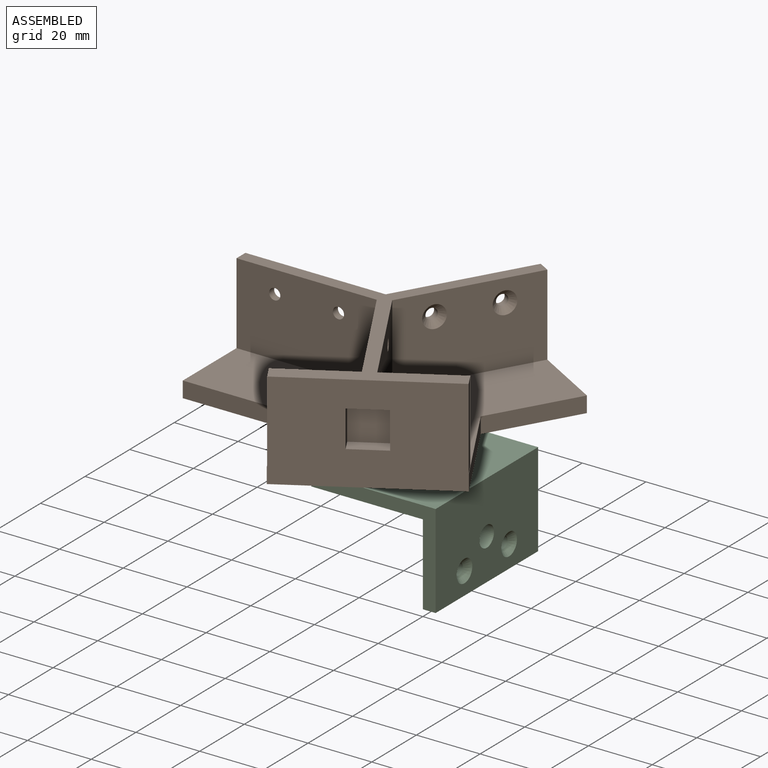
[diagram: assembled view]
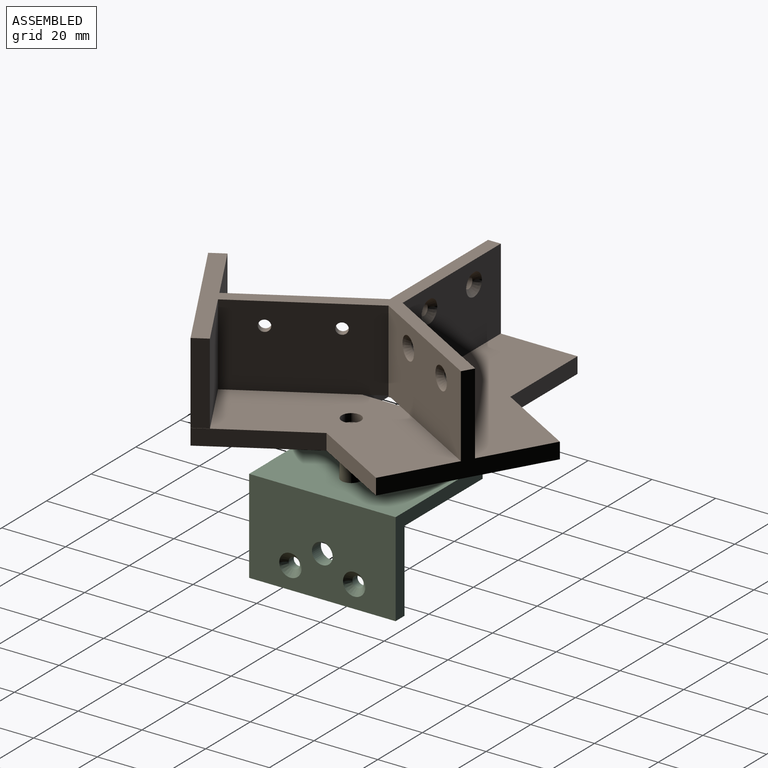
[diagram: assembled view, second angle]
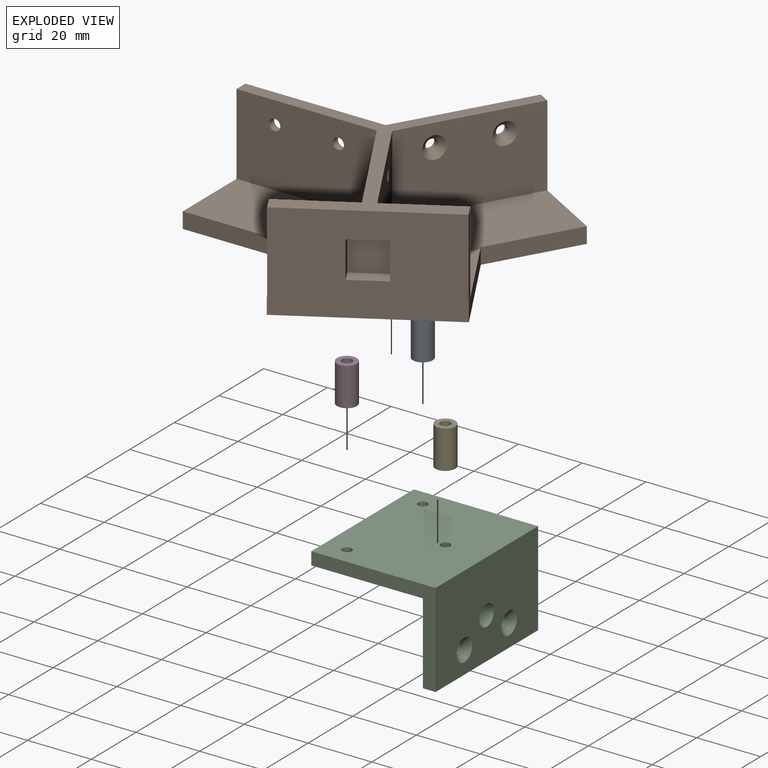
[diagram: exploded view]
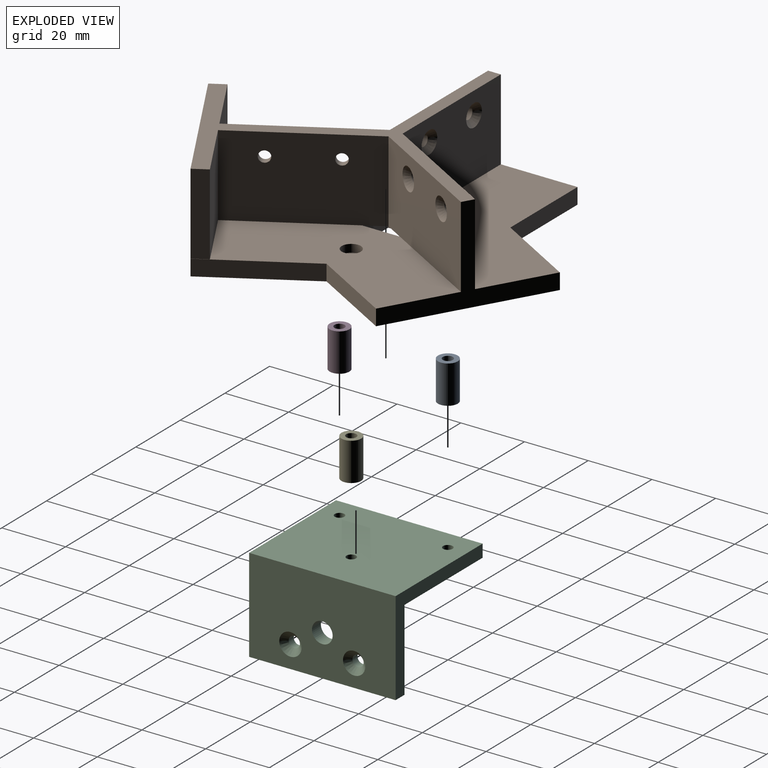
[diagram: exploded view, second angle]
ASSEMBLY  parts=5 mates=4
PART A: 4 faces, bbox 6.2x6.2x12 mm
  f0: cylinder r=1.6mm len=12mm, axis (0,0,-1), area 120.6mm2, adj f2,f3
  f1: cylinder r=3.1mm len=12mm, axis (0,0,-1), area 233.7mm2, adj f2,f3
  f2: plane 6.2x6.2mm, normal (0,0,1), area 22.1mm2, adj f0,f1
  f3: plane 6.2x6.2mm, normal (0,0,-1), area 22.1mm2, adj f0,f1
PART B: 55 faces, bbox 92.8x108.6x30.5 mm
  f0: plane 45.15x30.5mm, normal (0.5,-0.87,0), area 1454.5mm2, adj f1,f2,f3,f4,f27,f28,f47,f49
  f1: plane 66x54.47mm, normal (0,0,1), area 1734.5mm2, adj f0,f9,f10,f12,f26,f27,f40,f44
  f2: plane 108.61x92.81mm, normal (0,0,-1), area 5993.2mm2, adj f0,f7,f12,f26,f27,f28,f29,f30
  f3: plane 76.21x42.03mm, normal (0,0,1), area 1735.3mm2, adj f0,f6,f7,f8,f28,f29,f37,f42
  f4: plane 96.54x92.75mm, normal (0,0,1), area 794.9mm2, adj f0,f5,f6,f7,f8,f9,f10,f11
  f5: plane 38.11x25.5mm, normal (-0.87,0.5,0), area 1102.8mm2, adj f4,f7,f11,f17,f19,f25,f41
  f6: plane 38.11x25.5mm, normal (0.87,-0.5,0), area 1045mm2, adj f3,f4,f7,f8,f18,f20,f41
  f7: plane 45.15x30.5mm, normal (0.5,0.87,0), area 362.7mm2, adj f2,f3,f4,f5,f6,f25,f29,f31
  f8: plane 38.11x25.5mm, normal (0.87,0.5,0), area 1102.8mm2, adj f3,f4,f6,f13,f15,f41,f48
  f9: plane 38.11x25.5mm, normal (-0.87,-0.5,0), area 1045mm2, adj f1,f4,f10,f14,f16,f41,f46
  f10: plane 44x25.5mm, normal (0,-1,0), area 1102.8mm2, adj f1,f4,f9,f12,f21,f23,f41
  f11: plane 44x25.5mm, normal (0,1,0), area 1045mm2, adj f4,f5,f12,f22,f24,f25,f41
  f12: plane 52.14x30.5mm, normal (-1,0,0), area 362.7mm2, adj f1,f2,f4,f10,f11,f25,f26,f30
  f13: cylinder r=1.75mm len=4.16mm, axis (-0.87,-0.5,0), area 24.7mm2, adj f8,f14
  f14: cone r=1.75mm half-angle=45deg, axis (-0.87,-0.5,0), area 40.8mm2, adj f9,f13
  f15: cylinder r=1.75mm len=4.16mm, axis (-0.87,-0.5,0), area 24.7mm2, adj f8,f16
  f16: cone r=1.75mm half-angle=45deg, axis (-0.87,-0.5,0), area 40.8mm2, adj f9,f15
  f17: cylinder r=1.75mm len=4.16mm, axis (0.87,-0.5,0), area 24.7mm2, adj f5,f18
  f18: cone r=1.75mm half-angle=45deg, axis (0.87,-0.5,0), area 40.8mm2, adj f6,f17
  f19: cylinder r=1.75mm len=4.16mm, axis (0.87,-0.5,0), area 24.7mm2, adj f5,f20
  f20: cone r=1.75mm half-angle=45deg, axis (0.87,-0.5,0), area 40.8mm2, adj f6,f19
  f21: cylinder r=1.75mm len=3.5mm, axis (0,1,0), area 24.7mm2, adj f10,f22
  f22: cone r=1.75mm half-angle=45deg, axis (0,1,0), area 40.8mm2, adj f11,f21
  f23: cylinder r=1.75mm len=3.5mm, axis (0,1,0), area 24.7mm2, adj f10,f24
  f24: cone r=1.75mm half-angle=45deg, axis (0,1,0), area 40.8mm2, adj f11,f23
  f25: plane 66x50.14mm, normal (0,0,1), area 1734.1mm2, adj f5,f7,f11,f12,f30,f31,f34,f42
  f26: plane 30.1x5mm, normal (0,-1,0), area 150.5mm2, adj f1,f2,f12,f27
  f27: plane 30.4x17.55mm, normal (-0.87,-0.5,0), area 175.5mm2, adj f0,f1,f2,f26
  f28: plane 30.4x17.55mm, normal (0.87,0.5,0), area 175.5mm2, adj f0,f2,f3,f29
  f29: plane 26.07x15.05mm, normal (0.87,-0.5,0), area 150.5mm2, adj f2,f3,f7,f28
  f30: plane 30.1x5mm, normal (0,1,0), area 150.5mm2, adj f2,f12,f25,f31
  f31: plane 26.07x15.05mm, normal (-0.87,0.5,0), area 150.5mm2, adj f2,f7,f25,f30
  f32: cylinder r=1.5mm len=3mm, axis (0,0,1), area 23.6mm2, adj f2,f33
  f33: plane 6x6mm, normal (0,0,1), area 21.2mm2, adj f32,f34
  f34: cylinder r=3mm len=6mm, axis (0,0,1), area 47.1mm2, adj f25,f33
  f35: cylinder r=1.5mm len=3mm, axis (0,0,1), area 23.6mm2, adj f2,f36
  f36: plane 6x6mm, normal (0,0,1), area 21.2mm2, adj f35,f37
  f37: cylinder r=3mm len=6mm, axis (0,0,1), area 47.1mm2, adj f3,f36
  f38: cylinder r=1.5mm len=3mm, axis (0,0,1), area 23.6mm2, adj f2,f39
  f39: plane 6x6mm, normal (0,0,1), area 21.2mm2, adj f38,f40
  f40: cylinder r=3mm len=6mm, axis (0,0,1), area 47.1mm2, adj f1,f39
  f41: plane 11.5x11.38mm, normal (0,0,-1), area 69.2mm2, adj f5,f6,f8,f9,f10,f11,f42,f44
  f42: plane 11.5x5mm, normal (0,-1,0), area 57.5mm2, adj f2,f3,f25,f41,f43,f45
  f43: plane 11.5x5mm, normal (-1,0,0), area 57.5mm2, adj f2,f3,f42,f44
  f44: plane 11.5x5mm, normal (0,1,0), area 57.5mm2, adj f1,f2,f3,f41,f43,f45
  f45: plane 11.5x5mm, normal (1,0,0), area 57.5mm2, adj f1,f2,f25,f41,f42,f44
  f46: plane 25.5x20.78mm, normal (-0.5,0.87,0), area 612mm2, adj f1,f4,f9,f47
  f47: plane 25.5x4.33mm, normal (-0.87,-0.5,0), area 127.5mm2, adj f0,f1,f4,f46
  f48: plane 25.5x20.78mm, normal (-0.5,0.87,0), area 612mm2, adj f3,f4,f8,f49
  f49: plane 25.5x4.33mm, normal (0.87,0.5,0), area 127.5mm2, adj f0,f3,f4,f48
  f50: plane 12.21x9.65mm, normal (0,0,1), area 51.8mm2, adj f0,f51,f53,f54
  f51: plane 11.5x3.9mm, normal (-0.87,-0.5,0), area 51.8mm2, adj f0,f50,f52,f54
  f52: plane 12.21x9.65mm, normal (0,0,-1), area 51.8mm2, adj f0,f51,f53,f54
  f53: plane 11.5x3.9mm, normal (0.87,0.5,0), area 51.8mm2, adj f0,f50,f52,f54
  f54: plane 11.5x9.96mm, normal (0.5,-0.87,0), area 132.2mm2, adj f50,f51,f52,f53
PART C: 24 faces, bbox 39x46x29.5 mm
  f0: cylinder r=3.25mm len=6.5mm, axis (-1,0,0), area 81.7mm2, adj f18,f19
  f1: plane 39x29.5mm, normal (0,1,0), area 258mm2, adj f3,f4,f7,f8,f18,f19
  f2: plane 29.5x9mm, normal (0,-1,0), area 138mm2, adj f3,f5,f7,f8,f18,f19
  f3: plane 45.95x4mm, normal (0,0,1), area 183.8mm2, adj f1,f2,f18,f19
  f4: plane 46x4mm, normal (1,0,0), area 184mm2, adj f1,f6,f7,f8
  f5: plane 4x0.05mm, normal (-1,0,0), area 0.2mm2, adj f2,f6,f7,f8
  f6: plane 30x4mm, normal (0,-1,0), area 120mm2, adj f4,f5,f7,f8
  f7: plane 46x39mm, normal (0,0,-1), area 1772.3mm2, adj f1,f2,f4,f5,f6,f9,f12,f15
  f8: plane 46x35mm, normal (0,0,1), area 1524.9mm2, adj f1,f2,f4,f5,f6,f11,f14,f17
  f9: cylinder r=1.5mm len=3mm, axis (0,0,1), area 14.1mm2, adj f7,f10
  f10: plane 6x6mm, normal (0,0,1), area 21.2mm2, adj f9,f11
  f11: cylinder r=3mm len=6mm, axis (0,0,1), area 47.1mm2, adj f8,f10
  f12: cylinder r=1.5mm len=3mm, axis (0,0,1), area 14.1mm2, adj f7,f13
  f13: plane 6x6mm, normal (0,0,1), area 21.2mm2, adj f12,f14
  f14: cylinder r=3mm len=6mm, axis (0,0,1), area 47.1mm2, adj f8,f13
  f15: cylinder r=1.5mm len=3mm, axis (0,0,1), area 14.1mm2, adj f7,f16
  f16: plane 6x6mm, normal (0,0,1), area 21.2mm2, adj f15,f17
  f17: cylinder r=3mm len=6mm, axis (0,0,1), area 47.1mm2, adj f8,f16
  f18: plane 45.95x29.5mm, normal (-1,0,0), area 1245.4mm2, adj f0,f1,f2,f3,f7,f21,f23
  f19: plane 45.95x25.5mm, normal (1,0,0), area 1119.3mm2, adj f0,f1,f2,f3,f8,f20,f22
  f20: cylinder r=1.75mm len=3.5mm, axis (-1,0,0), area 24.7mm2, adj f19,f21
  f21: cone r=1.75mm half-angle=45deg, axis (-1,0,0), area 40.8mm2, adj f18,f20
  f22: cylinder r=1.75mm len=3.5mm, axis (-1,0,0), area 24.7mm2, adj f19,f23
  f23: cone r=1.75mm half-angle=45deg, axis (-1,0,0), area 40.8mm2, adj f18,f22
PART D: same geometry as A
PART E: same geometry as A
PLACE A t=(0,0,-23)mm
PLACE B t=(0,-17,-6)mm
PLACE C rot(axis=(0,-1,0),180deg) t=(0,-17,-27)mm
PLACE D t=(0,-34,-23)mm
PLACE E t=(19,-17,-23)mm
MATE fastened D.f1 <-> B.f38  axis (0,0,1) through (0,-34,-11)mm
MATE fastened A.f0 <-> C.f15  axis (0,0,-1) through (0,0,-23)mm
MATE fastened C.f12 <-> D.f1  axis (0,0,1) through (0,-34,-23)mm
MATE fastened E.f1 <-> C.f9  axis (0,0,-1) through (19,-17,-23)mm
